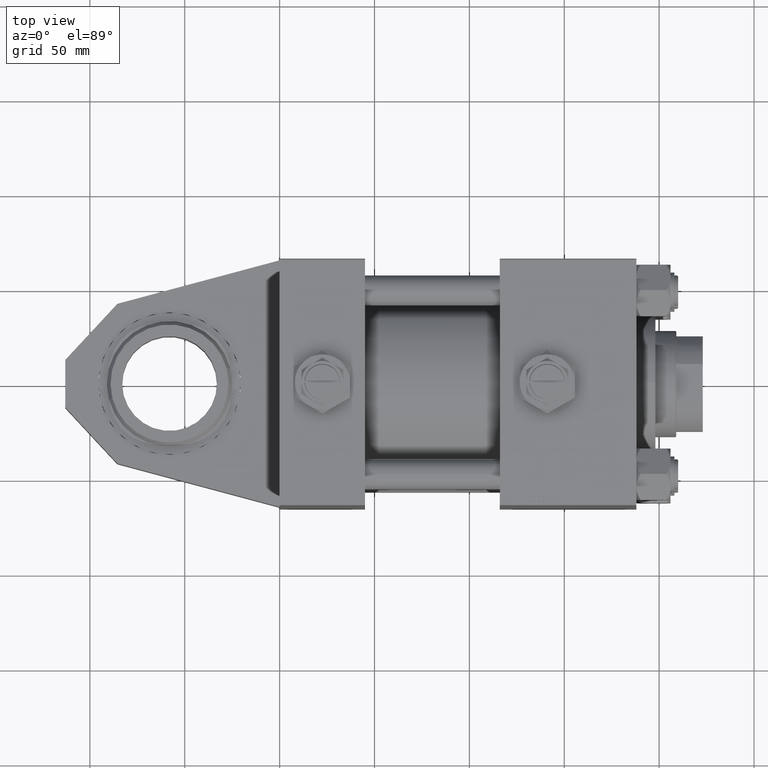
[diagram: clean part render]
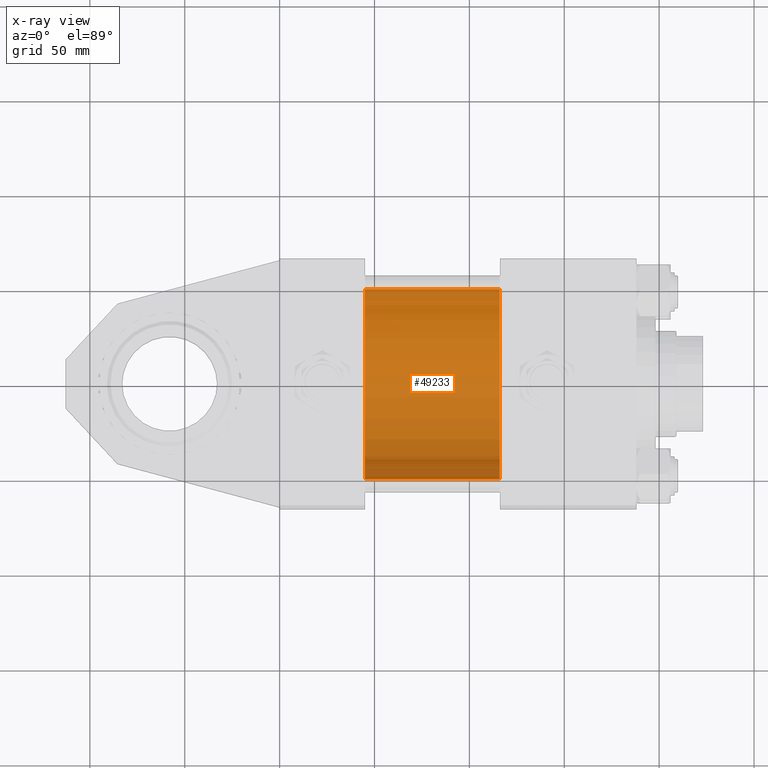
[diagram: x-ray — body ghosted, one internal face saturated and labeled with its STEP entity id]
A machine part, top view, then the same camera in x-ray: the body is ghosted and one INTERNAL B-rep face — a face not visible from any outside direction — is saturated and labeled: STEP entity #49233.
In plain terms, the highlighted cylindrical surface (partial cylindrical patch) has radius 50 mm, axis along (-1, 0, -0).
Its self-contained STEP definition (entity closure, byte-faithful):
#799 = VERTEX_POINT ( 'NONE', #21016 ) ;
#2191 = VERTEX_POINT ( 'NONE', #46117 ) ;
#3463 = DIRECTION ( 'NONE',  ( 0.000000000000000000, 0.000000000000000000, 1.000000000000000000 ) ) ;
#4464 = CARTESIAN_POINT ( 'NONE',  ( 115.9999999999999858, 3.521148781771555838E-15, -50.00000000000000000 ) ) ;
#4604 = CIRCLE ( 'NONE', #23322, 50.00000000000000000 ) ;
#4667 = EDGE_LOOP ( 'NONE', ( #21306, #23999, #5897, #40668 ) ) ;
#5153 = CARTESIAN_POINT ( 'NONE',  ( 115.9999999999999858, -2.602085213965210642E-15, 0.000000000000000000 ) ) ;
#5897 = ORIENTED_EDGE ( 'NONE', *, *, #18596, .F. ) ;
#8852 = VECTOR ( 'NONE', #41261, 1000.000000000000000 ) ;
#9556 = CARTESIAN_POINT ( 'NONE',  ( 115.9999999999999858, 3.521148781771555838E-15, -50.00000000000000000 ) ) ;
#12505 = EDGE_CURVE ( 'NONE', #21912, #2191, #52257, .T. ) ;
#13857 = DIRECTION ( 'NONE',  ( 1.000000000000000000, 0.000000000000000000, 0.000000000000000000 ) ) ;
#14917 = DIRECTION ( 'NONE',  ( -1.000000000000000000, -0.000000000000000000, -0.000000000000000000 ) ) ;
#18596 = EDGE_CURVE ( 'NONE', #799, #2191, #4604, .T. ) ;
#19199 = CARTESIAN_POINT ( 'NONE',  ( 115.9999999999999858, -2.602085213965210642E-15, 0.000000000000000000 ) ) ;
#19499 = EDGE_CURVE ( 'NONE', #45620, #21912, #34311, .T. ) ;
#21016 = CARTESIAN_POINT ( 'NONE',  ( 45.00000000000000000, -2.602085213965210642E-15, 50.00000000000000000 ) ) ;
#21306 = ORIENTED_EDGE ( 'NONE', *, *, #19499, .T. ) ;
#21912 = VERTEX_POINT ( 'NONE', #9556 ) ;
#22403 = AXIS2_PLACEMENT_3D ( 'NONE', #5153, #37671, #45932 ) ;
#23322 = AXIS2_PLACEMENT_3D ( 'NONE', #50360, #13857, #46365 ) ;
#23999 = ORIENTED_EDGE ( 'NONE', *, *, #12505, .T. ) ;
#27189 = FACE_OUTER_BOUND ( 'NONE', #4667, .T. ) ;
#34311 = CIRCLE ( 'NONE', #22403, 50.00000000000000000 ) ;
#37312 = CARTESIAN_POINT ( 'NONE',  ( 115.9999999999999858, -2.602085213965210642E-15, 50.00000000000000000 ) ) ;
#37671 = DIRECTION ( 'NONE',  ( 1.000000000000000000, 0.000000000000000000, 0.000000000000000000 ) ) ;
#38231 = EDGE_CURVE ( 'NONE', #45620, #799, #49303, .T. ) ;
#40668 = ORIENTED_EDGE ( 'NONE', *, *, #38231, .F. ) ;
#40889 = CARTESIAN_POINT ( 'NONE',  ( 115.9999999999999858, -2.602085213965210642E-15, 50.00000000000000000 ) ) ;
#41261 = DIRECTION ( 'NONE',  ( -1.000000000000000000, -0.000000000000000000, -0.000000000000000000 ) ) ;
#43209 = VECTOR ( 'NONE', #48512, 1000.000000000000000 ) ;
#45620 = VERTEX_POINT ( 'NONE', #40889 ) ;
#45932 = DIRECTION ( 'NONE',  ( 0.000000000000000000, 0.000000000000000000, -1.000000000000000000 ) ) ;
#46117 = CARTESIAN_POINT ( 'NONE',  ( 45.00000000000000000, 3.521148781771555838E-15, -50.00000000000000000 ) ) ;
#46365 = DIRECTION ( 'NONE',  ( 0.000000000000000000, 0.000000000000000000, -1.000000000000000000 ) ) ;
#47552 = AXIS2_PLACEMENT_3D ( 'NONE', #19199, #14917, #3463 ) ;
#48512 = DIRECTION ( 'NONE',  ( -1.000000000000000000, -0.000000000000000000, -0.000000000000000000 ) ) ;
#49233 = ADVANCED_FACE ( 'NONE', ( #27189 ), #51697, .F. ) ;
#49303 = LINE ( 'NONE', #37312, #43209 ) ;
#50360 = CARTESIAN_POINT ( 'NONE',  ( 45.00000000000000000, -2.602085213965210642E-15, 0.000000000000000000 ) ) ;
#51697 = CYLINDRICAL_SURFACE ( 'NONE', #47552, 50.00000000000000000 ) ;
#52257 = LINE ( 'NONE', #4464, #8852 ) ;